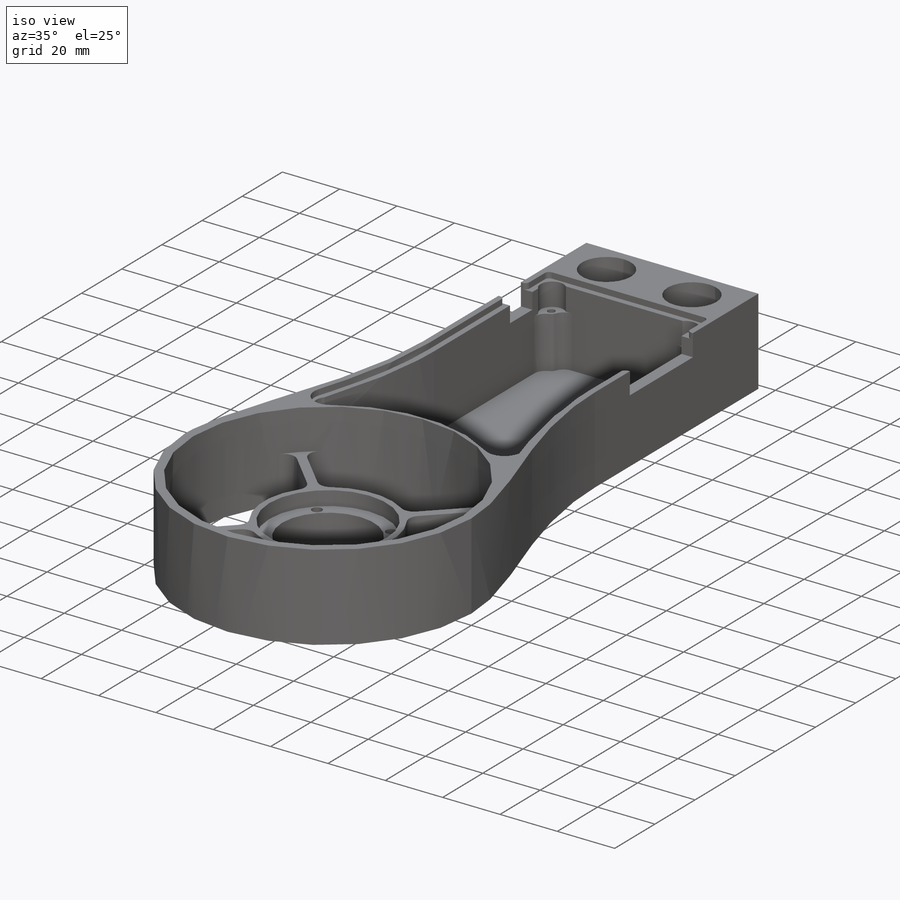
[diagram: iso view]
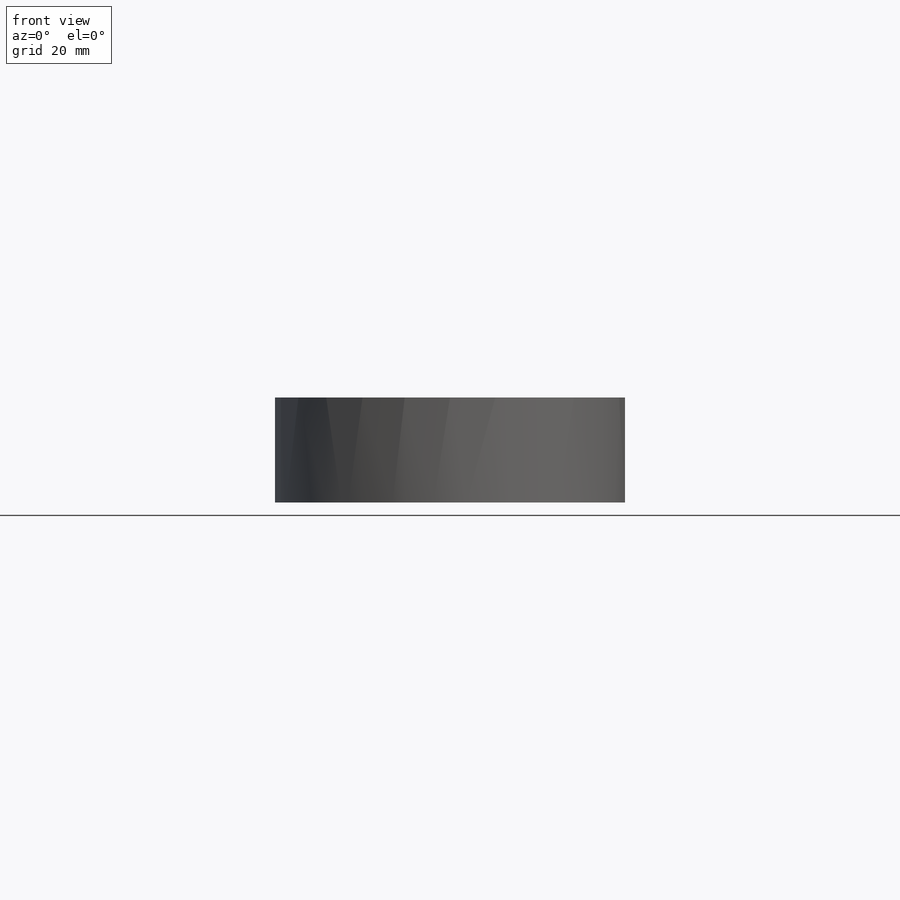
[diagram: front view]
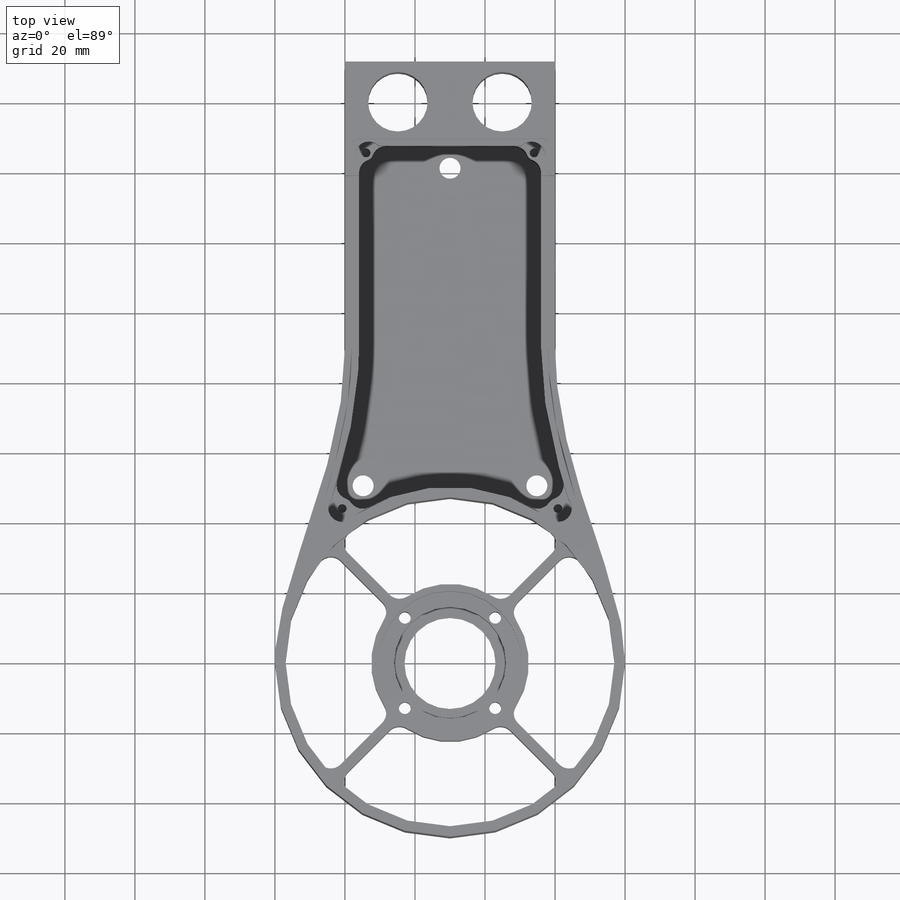
[diagram: top view]
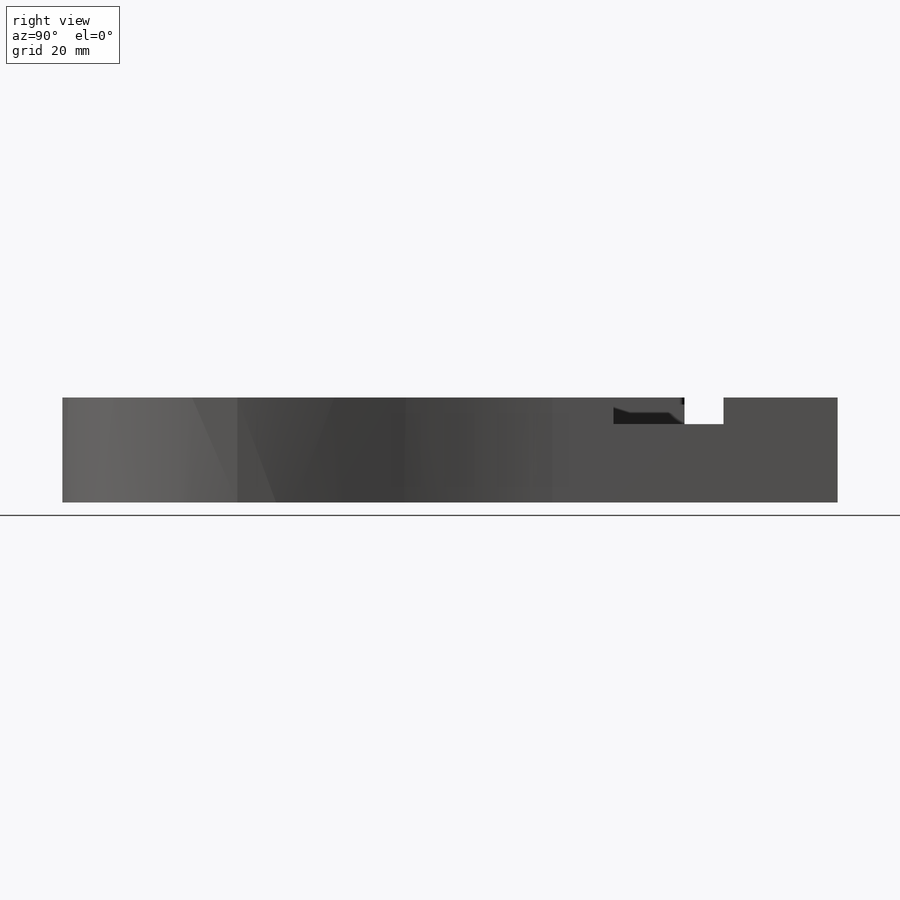
[diagram: right view]
SOLIDWORKS PART (.sldprt)
format: sldprt  version: not decoded by parser v0  size: 2,607,616 bytes
history: native  units: mm
features: sketch x42, extrude x15, cut_extrude x13, fillet x10, thread x10, hole x4, material x1, plane x1, move_body x1 (+11 scaffold rows collapsed)
feature tree (108):
  scaffold x11  (default folders/planes/origin — collapsed)
  material  "3.1355 (EN-AW 2024)"
  sketch  "Эскиз1"  dims[c1.D3=7.0mm c1.D5=94.0mm c1.D6=100.0mm c1.D1=60.0mm c1.D2=8.0mm c1.D4=140.0mm c2.D2=29.8mm]
  extrude  "Бобышка-Вытянуть1"  Depth=30mm
  sketch  "Эскиз2"  dims[D1=0.0mm D2=3.0mm]
  cut_extrude  "Вырез-Вытянуть1"  [1 undecoded]
  sketch  "Эскиз3"  dims[D1=26.0mm D2=45.0mm]
  extrude  "Бобышка-Вытянуть2"  Depth=16mm
  sketch  "Эскиз4"  dims[D1=41.0mm D2=45.0mm]
  cut_extrude  "Вырез-Вытянуть2"  Depth=5mm
  sketch  "Эскиз5"  dims[D1=32.0mm]
  cut_extrude  "Вырез-Вытянуть3"  Depth=10mm
  sketch  "Эскиз6"  dims[c1.D1=36.5mm c1.D2=~13.321108mm c2.D2=45.0deg c2.D3=4.0]
  hole  "Отверстие с зазором M31"  [1 undecoded]
  sketch  "Эскиз8"
  sketch  "Эскиз7"  dims[hole-wizard template sketch: 61 standard entries collapsed; hole parameters above]
  sketch  "Эскиз9"
  extrude  "Бобышка-Вытянуть3"  [1 undecoded]
  sketch  "Эскиз10"  dims[c1.D1=47.0mm c2.D1=45.0deg c2.D2=1.5mm c2.D3=1.5mm c3.D2=4.0]
  extrude  "Бобышка-Вытянуть4"  [1 undecoded]
  fillet  "Скругление1"  Radius=4mm
  fillet  "Скругление2"  Radius=4mm
  sketch  "Эскиз11"
  extrude  "Бобышка-Вытянуть5"  [1 undecoded]
  sketch  "Эскиз12"
  extrude  "Бобышка-Вытянуть6"  [1 undecoded]
  sketch  "Эскиз13"  dims[D1=1.0mm]
  extrude  "Бобышка-Вытянуть7"  [1 undecoded]
  sketch  "Эскиз14"
  cut_extrude  "Вырез-Вытянуть4"  [1 undecoded]
  sketch  "Эскиз15"  dims[D1=4.0mm D2=4.0mm]
  extrude  "Бобышка-Вытянуть9"  Depth=30mm
  sketch  "Эскиз16"
  extrude  "Бобышка-Вытянуть10"  Depth=2mm
  sketch  "Эскиз17"  dims[D1=8.0]
  sketch  "Эскиз18"  dims[c1.D4=3.0mm c1.D1=45.0mm c1.D3=1.0mm c1.D5=5.0mm c2.D3=1.0mm c2.D5=5.0mm c2.D2=2.5mm]
  sketch  "Эскиз19"  dims[D1=5.0mm]
  extrude  "Бобышка-Вытянуть11"  Depth=6mm
  hole  "Отверстие обработанное метчиком M3x0.51"  [1 undecoded]
  sketch  "Эскиз21"
  sketch  "Эскиз20"  dims[hole-wizard template sketch: 47 standard entries collapsed; hole parameters kept: c15.Глубина сверла=5.0mm c15.D3=~14.816244mm c15.Угол заточки сверла=118.0deg]
  sketch  "Эскиз22"  dims[D1=1.5mm D2=1.5mm D3=1.5mm D4=1.5mm D5=0.0mm D6=0.0mm D7=0.0mm D8=0.0mm]
  extrude  "Бобышка-Вытянуть12"  Depth=2mm
  sketch  "Эскиз23"  dims[D3=1.5mm D1=1.5mm D2=1.5mm]
  cut_extrude  "Вырез-Вытянуть5"  [1 undecoded]
  sketch  "Эскиз24"  dims[D2=1.5mm D1=1.5mm]
  extrude  "Бобышка-Вытянуть14"  [1 undecoded]
  sketch  "Эскиз26"  dims[D1=~12.918808mm]
  plane  "Плоскость1"
  move_body  "Тело-Переместить/Копировать1"
  sketch  "Эскиз27"  dims[D2=~4.489008mm D1=0.0mm]
  extrude  "Бобышка-Вытянуть15"  [1 undecoded]
  fillet  "Скругление3"  Radius=1mm
  sketch  "Эскиз28"  dims[D1=5.0mm D2=4.25mm D3=25.75mm D4=25.75mm D5=4.25mm D6=~19.09465mm]
  hole  "Отверстие обработанное метчиком M4x0.71"  [1 undecoded]
  sketch  "Эскиз30"
  sketch  "Эскиз29"  dims[hole-wizard template sketch: 47 standard entries collapsed; hole parameters kept: c15.Глубина сверла=11.0mm c15.D3=~14.816244mm c15.Угол заточки сверла=118.0deg]
  thread  "Отверстие резьбы5"  Diameter=11mm  [1 undecoded]
  thread  "Отверстие резьбы6"  Diameter=11mm  [1 undecoded]
  thread  "Отверстие резьбы7"  Diameter=11mm  [1 undecoded]
  thread  "Отверстие резьбы8"  Diameter=11mm  [1 undecoded]
  thread  "Отверстие резьбы9"  Diameter=11mm  [1 undecoded]
  thread  "Отверстие резьбы10"  Diameter=11mm  [1 undecoded]
  sketch  "Эскиз31"  dims[D1=2.0mm]
  cut_extrude  "Вырез-Вытянуть6"  Depth=2mm
  sketch  "Эскиз32"  dims[D1=0.1mm]
  extrude  "Бобышка-Вытянуть16"  Depth=2mm
  sketch  "Эскиз33"  dims[D1=0.5mm D2=0.5mm]
  cut_extrude  "Вырез-Вытянуть7"  Depth=4mm
  sketch  "Эскиз34"  dims[c1.D1=6.0mm c1.D2=3.0mm c1.D3=3.0mm c2.D2=~24.821893mm c2.D3=56.0mm c3.D3=50.0deg c3.D4=~10.991985mm c3.D5=~25.469833mm c4.D4=12.0mm]
  cut_extrude  "Вырез-Вытянуть8"  [1 undecoded]
  sketch  "Эскиз35"
  cut_extrude  "Вырез-Вытянуть9"  [1 undecoded]
  sketch  "Эскиз36"  dims[D1=6.0mm D4=4.0mm D2=4.9mm D3=4.0mm D5=4.0mm]
  extrude  "Бобышка-Вытянуть17"  Depth=18mm
  hole  "Отверстие обработанное метчиком M3x0.52"  [1 undecoded]
  sketch  "Эскиз38"
  sketch  "Эскиз37"  dims[hole-wizard template sketch: 50 standard entries collapsed; hole parameters above]
  thread  "Отверстие резьбы11"  Diameter=6mm  [1 undecoded]
  thread  "Отверстие резьбы12"  Diameter=6mm  [1 undecoded]
  thread  "Отверстие резьбы13"  Diameter=6mm  [1 undecoded]
  thread  "Отверстие резьбы14"  Diameter=6mm  [1 undecoded]
  fillet  "Скругление4"  Radius=4mm
  fillet  "Скругление5"  Radius=4mm
  fillet  "Скругление6"  Radius=4mm
  fillet  "Скругление7"  Radius=4mm
  fillet  "Скругление8"  Radius=4mm
  sketch  "Эскиз39"  dims[D1=6.0mm D2=3.0mm]
  cut_extrude  "Вырез-Вытянуть10"  [1 undecoded]
  sketch  "Эскиз42"  dims[D1=0.1mm D2=0.1mm]
  cut_extrude  "Вырез-Вытянуть12"  [1 undecoded]
  fillet  "Скругление9"  Radius=1.5mm
  sketch  "Эскиз44"  dims[D1=0.5mm D2=0.5mm]
  cut_extrude  "Вырез-Вытянуть13"  [1 undecoded]
  fillet  "Скругление10"  Radius=1.4mm
  sketch  "Эскиз46"  dims[c1.D2=8.0mm c1.D3=8.0mm c1.D1=53.0mm c2.D1=45.0deg]
  cut_extrude  "Вырез-Вытянуть14"  [1 undecoded]
  sketch  "Эскиз47"
decode coverage: 63 of 95 modeling features carry decoded parameters
note: ~ marks probable driven/reference dimensions
note: 30 parameter values undecoded
summary: no parameter record found for 20 features
note: suppression state not decoded; provenance and decode notes live in map.json
